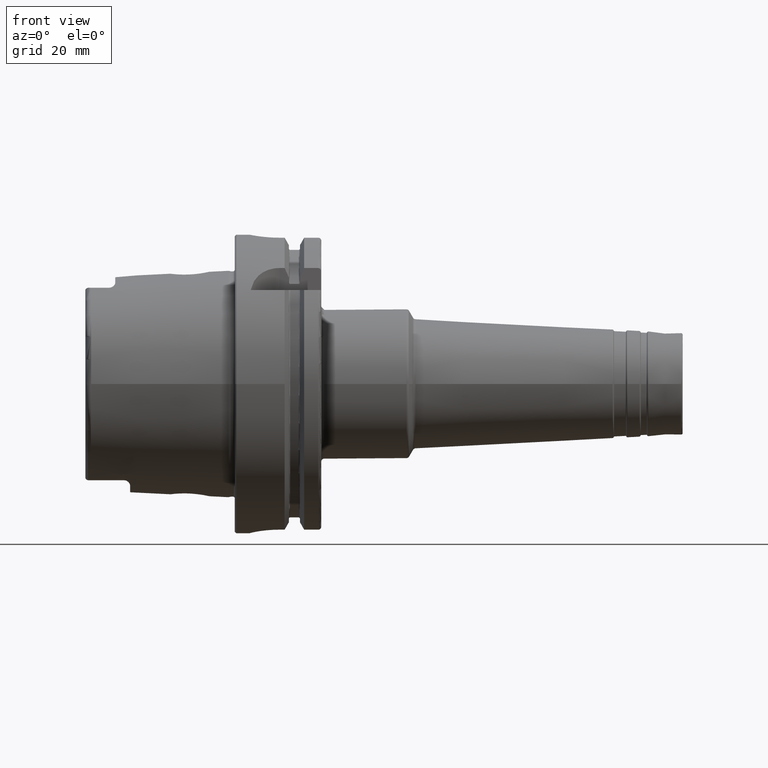
[diagram: clean part render]
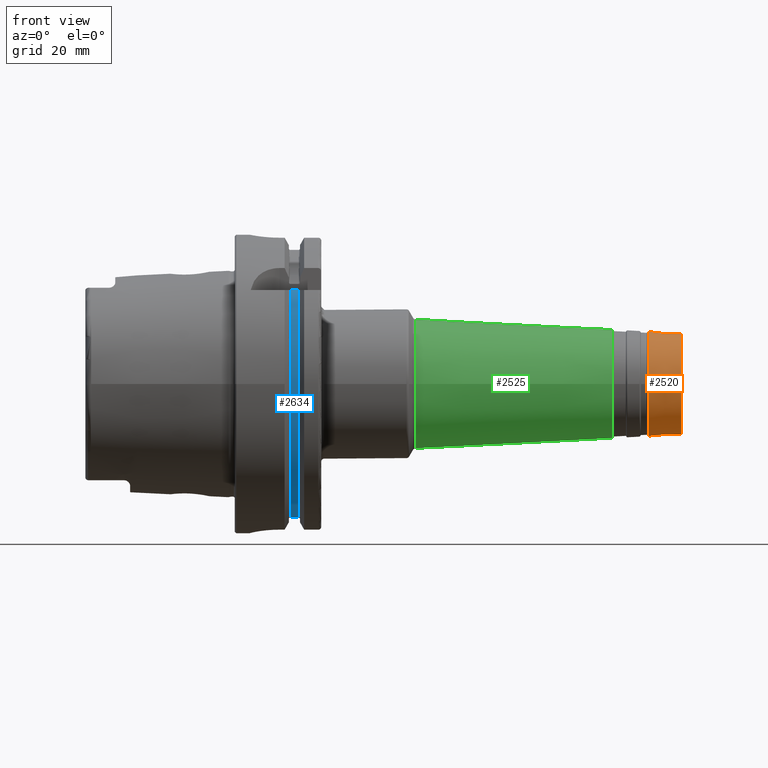
[diagram: same view with three faces highlighted in distinct colors, each labeled with its STEP entity id]
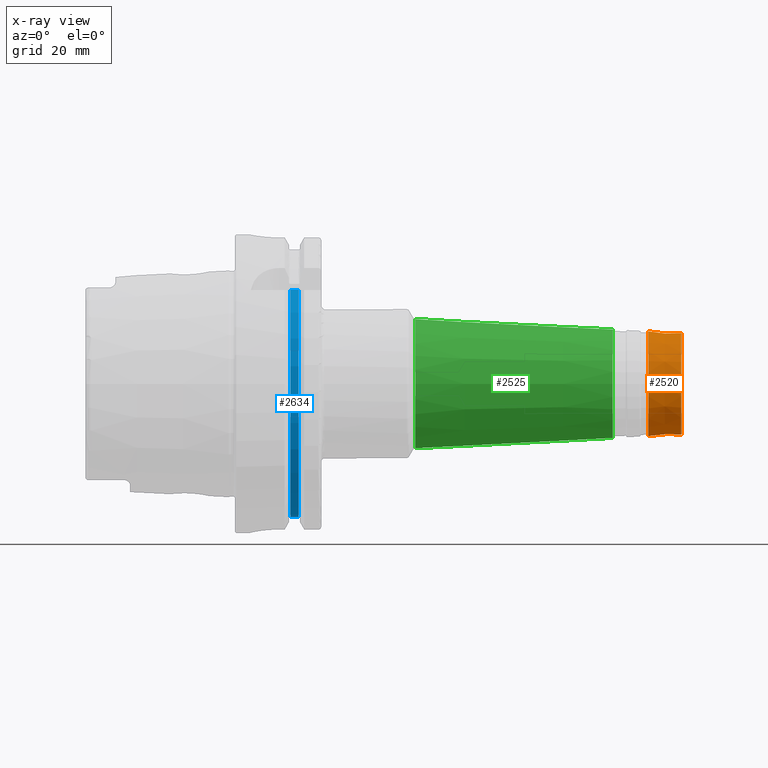
[diagram: x-ray of the same camera — body ghosted, the three highlighted faces saturated]
A machine part, front view with three faces highlighted in distinct colors.
The next image is the same camera in x-ray (body ghosted, the three faces saturated) — at least one of them is partly hidden behind the body in this view.
Their STEP definitions:

[orange] entity #2520 — the highlighted conical surface has half-angle 3 deg.
#226=FACE_OUTER_BOUND('',#360,.T.);
#360=EDGE_LOOP('',(#1755,#1756,#1757,#1758,#1759,#1760,#1761,#1762));
#500=LINE('',#4001,#614);
#614=VECTOR('',#3173,17.3062069282811);
#766=CIRCLE('',#2721,17.6003273851922);
#767=CIRCLE('',#2722,17.6003273851922);
#769=CIRCLE('',#2724,17.6003273851922);
#770=CIRCLE('',#2726,17.0248324840198);
#771=CIRCLE('',#2727,17.0248324840198);
#772=CIRCLE('',#2728,17.0248324840198);
#988=VERTEX_POINT('',#3988);
#989=VERTEX_POINT('',#3989);
#990=VERTEX_POINT('',#3991);
#991=VERTEX_POINT('',#3996);
#992=VERTEX_POINT('',#3997);
#993=VERTEX_POINT('',#3999);
#1290=EDGE_CURVE('',#988,#989,#766,.T.);
#1291=EDGE_CURVE('',#989,#990,#767,.T.);
#1293=EDGE_CURVE('',#990,#988,#769,.T.);
#1294=EDGE_CURVE('',#991,#992,#770,.T.);
#1295=EDGE_CURVE('',#993,#991,#771,.T.);
#1296=EDGE_CURVE('',#993,#989,#500,.T.);
#1297=EDGE_CURVE('',#992,#993,#772,.T.);
#1755=ORIENTED_EDGE('',*,*,#1294,.F.);
#1756=ORIENTED_EDGE('',*,*,#1295,.F.);
#1757=ORIENTED_EDGE('',*,*,#1296,.T.);
#1758=ORIENTED_EDGE('',*,*,#1290,.F.);
#1759=ORIENTED_EDGE('',*,*,#1293,.F.);
#1760=ORIENTED_EDGE('',*,*,#1291,.F.);
#1761=ORIENTED_EDGE('',*,*,#1296,.F.);
#1762=ORIENTED_EDGE('',*,*,#1297,.F.);
#2489=CONICAL_SURFACE('',#2725,17.3062069282811,0.0523598775598299);
#2520=ADVANCED_FACE('',(#226),#2489,.T.);
#2721=AXIS2_PLACEMENT_3D('',#3990,#3159,#3160);
#2722=AXIS2_PLACEMENT_3D('',#3992,#3161,#3162);
#2724=AXIS2_PLACEMENT_3D('',#3994,#3165,#3166);
#2725=AXIS2_PLACEMENT_3D('',#3995,#3167,#3168);
#2726=AXIS2_PLACEMENT_3D('',#3998,#3169,#3170);
#2727=AXIS2_PLACEMENT_3D('',#4000,#3171,#3172);
#2728=AXIS2_PLACEMENT_3D('',#4002,#3174,#3175);
#3159=DIRECTION('center_axis',(-1.,0.,0.));
#3160=DIRECTION('ref_axis',(0.,-1.,3.06161699786838E-17));
#3161=DIRECTION('center_axis',(-1.,0.,0.));
#3162=DIRECTION('ref_axis',(0.,-1.,3.06161699786838E-17));
#3165=DIRECTION('center_axis',(-1.,0.,0.));
#3166=DIRECTION('ref_axis',(0.,-1.,3.06161699786838E-17));
#3167=DIRECTION('center_axis',(-1.,0.,0.));
#3168=DIRECTION('ref_axis',(0.,1.,0.));
#3169=DIRECTION('center_axis',(1.,0.,0.));
#3170=DIRECTION('ref_axis',(0.,-1.,3.06161699786838E-17));
#3171=DIRECTION('center_axis',(1.,0.,0.));
#3172=DIRECTION('ref_axis',(0.,-1.,3.06161699786838E-17));
#3173=DIRECTION('',(-0.998629534754574,-0.0523359562429438,-6.40930612932371E-18));
#3174=DIRECTION('center_axis',(1.,0.,0.));
#3175=DIRECTION('ref_axis',(0.,-1.,3.06161699786838E-17));
#3988=CARTESIAN_POINT('',(138.545071105762,17.6003273851922,-5.38854614905528E-15));
#3989=CARTESIAN_POINT('',(138.545071105762,-17.6003273851922,-2.15541845962211E-15));
#3990=CARTESIAN_POINT('Origin',(138.545071105762,0.,-2.69427307452764E-15));
#3991=CARTESIAN_POINT('',(138.545071105762,-2.15541845962211E-15,17.6003273851922));
#3992=CARTESIAN_POINT('Origin',(138.545071105762,0.,-2.69427307452764E-15));
#3994=CARTESIAN_POINT('Origin',(138.545071105762,0.,-2.69427307452764E-15));
#3995=CARTESIAN_POINT('Origin',(144.157223746739,0.,0.));
#3996=CARTESIAN_POINT('',(149.526167978121,17.0248324840198,-1.04247033037874E-15));
#3997=CARTESIAN_POINT('',(149.526167978121,-2.08494066075748E-15,17.0248324840198));
#3998=CARTESIAN_POINT('Origin',(149.526167978121,0.,-2.60617582594685E-15));
#3999=CARTESIAN_POINT('',(149.526167978121,-17.0248324840198,-2.08494066075748E-15));
#4000=CARTESIAN_POINT('Origin',(149.526167978121,0.,-2.60617582594685E-15));
#4001=CARTESIAN_POINT('',(144.157223746739,-17.3062069282811,-2.11939909201012E-15));
#4002=CARTESIAN_POINT('Origin',(149.526167978121,0.,-2.60617582594685E-15));

[blue] entity #2634 — the highlighted cylindrical surface (partial cylindrical patch) has radius 46 mm, axis along (1, 0, 0).
#210=CYLINDRICAL_SURFACE('',#3015,46.);
#340=FACE_OUTER_BOUND('',#485,.T.);
#485=EDGE_LOOP('',(#2453,#2454,#2455,#2456));
#555=LINE('',#5031,#669);
#575=LINE('',#5274,#689);
#669=VECTOR('',#3486,10.);
#689=VECTOR('',#3560,10.);
#939=CIRCLE('',#3014,46.);
#940=CIRCLE('',#3016,46.);
#1135=VERTEX_POINT('',#5019);
#1136=VERTEX_POINT('',#5030);
#1175=VERTEX_POINT('',#5262);
#1176=VERTEX_POINT('',#5273);
#1478=EDGE_CURVE('',#1136,#1135,#555,.T.);
#1532=EDGE_CURVE('',#1176,#1175,#575,.T.);
#1642=EDGE_CURVE('',#1135,#1176,#939,.T.);
#1643=EDGE_CURVE('',#1136,#1175,#940,.T.);
#2453=ORIENTED_EDGE('',*,*,#1478,.T.);
#2454=ORIENTED_EDGE('',*,*,#1642,.T.);
#2455=ORIENTED_EDGE('',*,*,#1532,.T.);
#2456=ORIENTED_EDGE('',*,*,#1643,.F.);
#2634=ADVANCED_FACE('',(#340),#210,.T.);
#3014=AXIS2_PLACEMENT_3D('',#5576,#3848,#3849);
#3015=AXIS2_PLACEMENT_3D('',#5577,#3850,#3851);
#3016=AXIS2_PLACEMENT_3D('',#5578,#3852,#3853);
#3486=DIRECTION('',(-1.,0.,0.));
#3560=DIRECTION('',(1.,0.,0.));
#3848=DIRECTION('center_axis',(1.,0.,0.));
#3849=DIRECTION('ref_axis',(0.,0.,-1.));
#3850=DIRECTION('center_axis',(1.,0.,0.));
#3851=DIRECTION('ref_axis',(0.,-0.958952815598936,-0.283565684550992));
#3852=DIRECTION('center_axis',(1.,0.,0.));
#3853=DIRECTION('ref_axis',(0.,0.,-1.));
#5019=CARTESIAN_POINT('',(18.625,-33.5223805837235,31.5));
#5030=CARTESIAN_POINT('',(21.375,-33.5223805837235,31.5));
#5031=CARTESIAN_POINT('',(20.,-33.5223805837235,31.5));
#5262=CARTESIAN_POINT('',(21.375,-11.,-44.6654228682546));
#5273=CARTESIAN_POINT('',(18.625,-11.,-44.6654228682546));
#5274=CARTESIAN_POINT('',(20.,-11.,-44.6654228682546));
#5576=CARTESIAN_POINT('Origin',(18.625,0.,0.));
#5577=CARTESIAN_POINT('Origin',(20.,0.,0.));
#5578=CARTESIAN_POINT('Origin',(21.375,0.,0.));

[green] entity #2525 — the highlighted conical surface has half-angle 3 deg.
#231=FACE_OUTER_BOUND('',#365,.T.);
#365=EDGE_LOOP('',(#1795,#1796,#1797,#1798,#1799,#1800,#1801,#1802));
#502=LINE('',#4031,#616);
#616=VECTOR('',#3211,19.9675128445667);
#782=CIRCLE('',#2742,18.2304120250298);
#783=CIRCLE('',#2743,18.2304120250298);
#784=CIRCLE('',#2744,18.2304120250298);
#785=CIRCLE('',#2746,21.6882840297356);
#786=CIRCLE('',#2747,21.6882840297356);
#787=CIRCLE('',#2748,21.6882840297356);
#1000=VERTEX_POINT('',#4022);
#1001=VERTEX_POINT('',#4024);
#1002=VERTEX_POINT('',#4026);
#1003=VERTEX_POINT('',#4030);
#1004=VERTEX_POINT('',#4032);
#1005=VERTEX_POINT('',#4034);
#1308=EDGE_CURVE('',#1000,#1001,#782,.T.);
#1309=EDGE_CURVE('',#1001,#1002,#783,.T.);
#1310=EDGE_CURVE('',#1002,#1000,#784,.T.);
#1311=EDGE_CURVE('',#1001,#1003,#502,.T.);
#1312=EDGE_CURVE('',#1004,#1003,#785,.T.);
#1313=EDGE_CURVE('',#1005,#1004,#786,.T.);
#1314=EDGE_CURVE('',#1003,#1005,#787,.T.);
#1795=ORIENTED_EDGE('',*,*,#1310,.F.);
#1796=ORIENTED_EDGE('',*,*,#1309,.F.);
#1797=ORIENTED_EDGE('',*,*,#1311,.T.);
#1798=ORIENTED_EDGE('',*,*,#1312,.F.);
#1799=ORIENTED_EDGE('',*,*,#1313,.F.);
#1800=ORIENTED_EDGE('',*,*,#1314,.F.);
#1801=ORIENTED_EDGE('',*,*,#1311,.F.);
#1802=ORIENTED_EDGE('',*,*,#1308,.F.);
#2491=CONICAL_SURFACE('',#2745,19.9675128445667,0.0523598775598299);
#2525=ADVANCED_FACE('',(#231),#2491,.T.);
#2742=AXIS2_PLACEMENT_3D('',#4025,#3203,#3204);
#2743=AXIS2_PLACEMENT_3D('',#4027,#3205,#3206);
#2744=AXIS2_PLACEMENT_3D('',#4028,#3207,#3208);
#2745=AXIS2_PLACEMENT_3D('',#4029,#3209,#3210);
#2746=AXIS2_PLACEMENT_3D('',#4033,#3212,#3213);
#2747=AXIS2_PLACEMENT_3D('',#4035,#3214,#3215);
#2748=AXIS2_PLACEMENT_3D('',#4036,#3216,#3217);
#3203=DIRECTION('center_axis',(1.,0.,0.));
#3204=DIRECTION('ref_axis',(0.,-1.,3.06161699786838E-17));
#3205=DIRECTION('center_axis',(1.,0.,0.));
#3206=DIRECTION('ref_axis',(0.,-1.,3.06161699786838E-17));
#3207=DIRECTION('center_axis',(1.,0.,0.));
#3208=DIRECTION('ref_axis',(0.,-1.,3.06161699786838E-17));
#3209=DIRECTION('center_axis',(-1.,0.,0.));
#3210=DIRECTION('ref_axis',(0.,1.,0.));
#3211=DIRECTION('',(-0.998629534754574,-0.0523359562429439,-6.40930612932371E-18));
#3212=DIRECTION('center_axis',(-1.,0.,0.));
#3213=DIRECTION('ref_axis',(0.,-1.,3.06161699786838E-17));
#3214=DIRECTION('center_axis',(-1.,0.,0.));
#3215=DIRECTION('ref_axis',(0.,-1.,3.06161699786838E-17));
#3216=DIRECTION('center_axis',(-1.,0.,0.));
#3217=DIRECTION('ref_axis',(0.,-1.,3.06161699786838E-17));
#4022=CARTESIAN_POINT('',(126.522339968181,-2.23258157335902E-15,18.2304120250298));
#4024=CARTESIAN_POINT('',(126.522339968181,-18.2304120250298,-2.23258157335902E-15));
#4025=CARTESIAN_POINT('Origin',(126.522339968181,0.,-2.79072696669878E-15));
#4026=CARTESIAN_POINT('',(126.522339968181,18.2304120250298,-1.11629078667951E-15));
#4027=CARTESIAN_POINT('Origin',(126.522339968181,0.,-2.79072696669878E-15));
#4028=CARTESIAN_POINT('Origin',(126.522339968181,0.,-2.79072696669878E-15));
#4029=CARTESIAN_POINT('Origin',(93.3764817902328,0.,0.));
#4030=CARTESIAN_POINT('',(60.5422115977223,-21.6882840297356,-2.65604876160143E-15));
#4031=CARTESIAN_POINT('',(93.3764817902328,-19.9675128445667,-2.44531506920323E-15));
#4032=CARTESIAN_POINT('',(60.5422115977223,21.6882840297356,-6.64012190400358E-15));
#4033=CARTESIAN_POINT('Origin',(60.5422115977223,0.,-3.32006095200179E-15));
#4034=CARTESIAN_POINT('',(60.5422115977223,-2.65604876160143E-15,21.6882840297356));
#4035=CARTESIAN_POINT('Origin',(60.5422115977223,0.,-3.32006095200179E-15));
#4036=CARTESIAN_POINT('Origin',(60.5422115977223,0.,-3.32006095200179E-15));